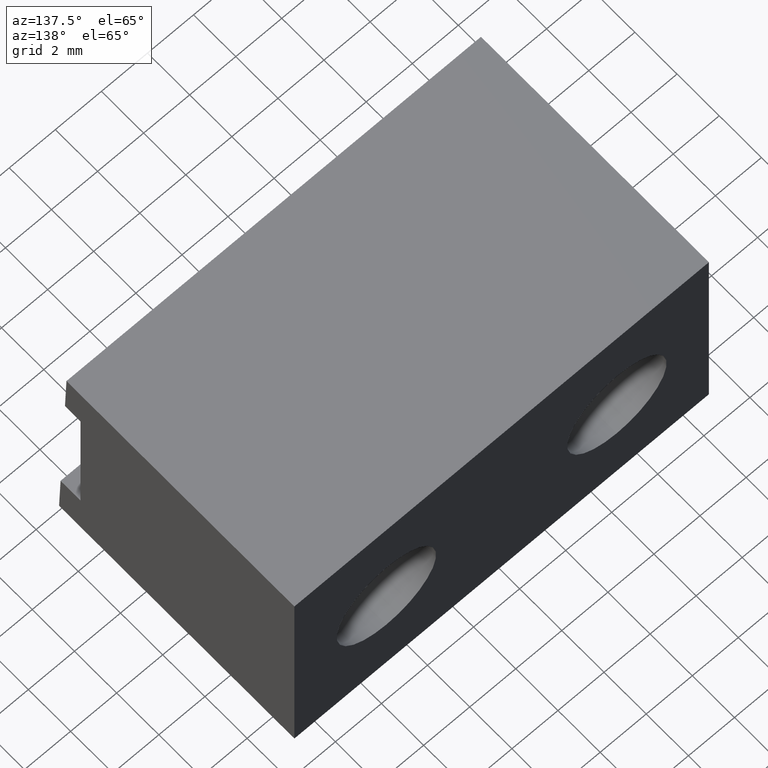
[diagram: clean part render]
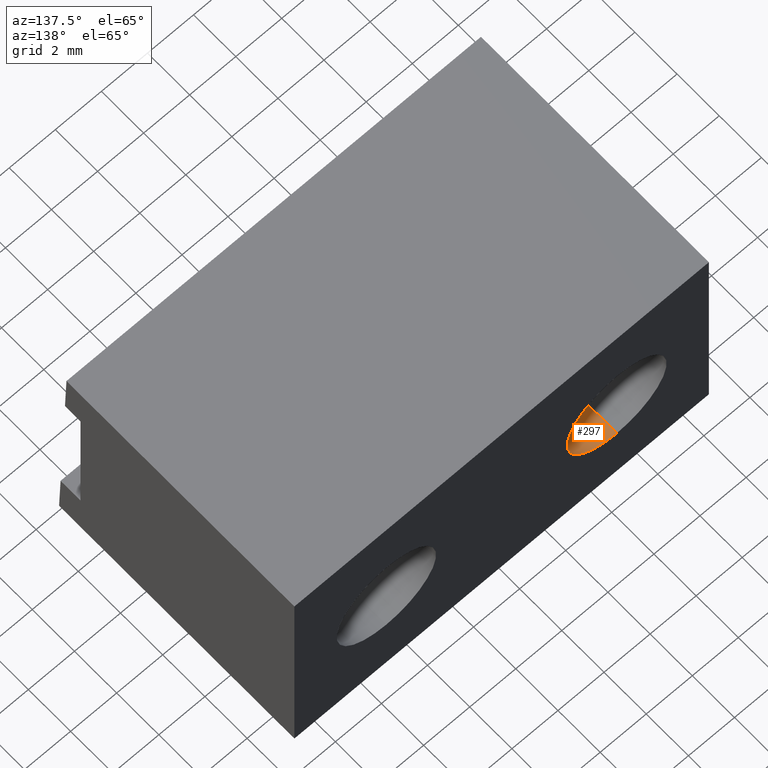
[diagram: same view with one face highlighted and labeled with its STEP entity id]
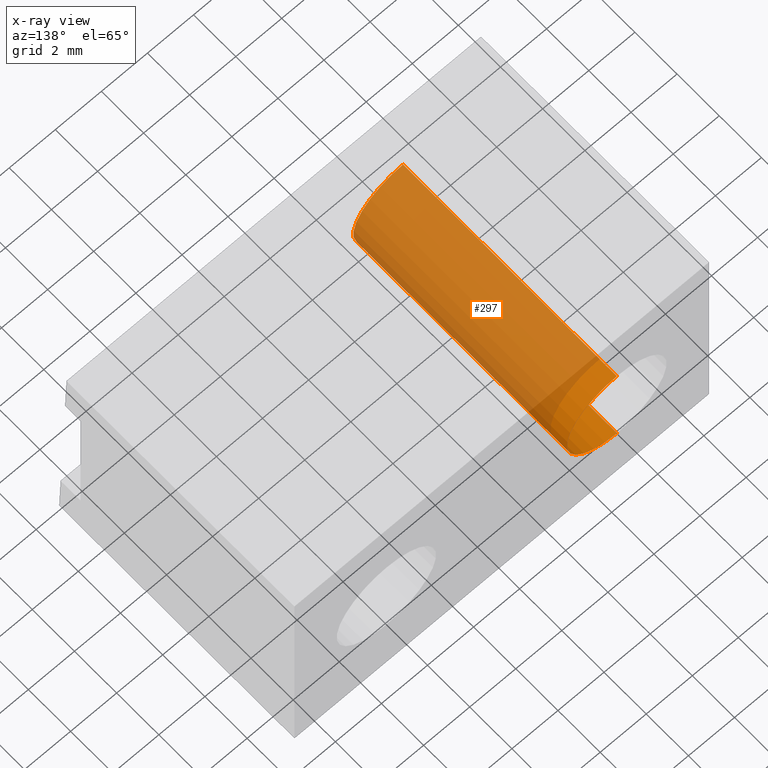
[diagram: x-ray of the same camera — body ghosted, the highlighted face saturated]
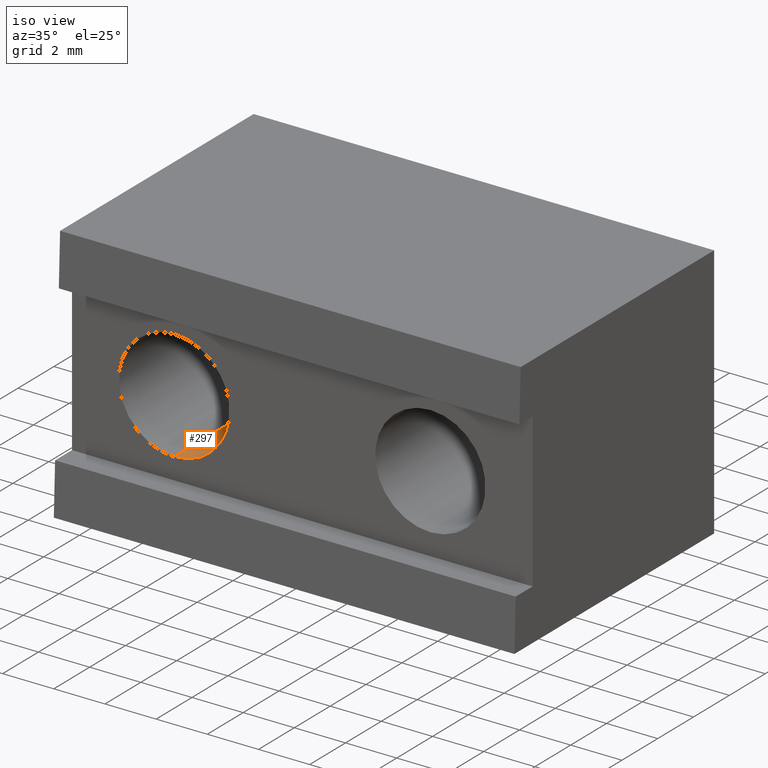
[diagram: same view with one face highlighted and labeled with its STEP entity id]
A machine part, auxiliary view. The second image highlights one B-rep face of the part: STEP entity #297.
The next image is the same camera in x-ray: the body ghosted, the highlighted face saturated — about 87% of this face is hidden behind the body in this view.
A second angle (iso view) of the same face is appended — the face is thin or edge-on in the first view.
In plain terms, the highlighted cylindrical surface (partial cylindrical patch) has radius 2.159 mm, axis along (-0, 1, -0).
Its self-contained STEP definition (entity closure, byte-faithful):
#62 = ORIENTED_EDGE ( 'NONE', *, *, #344, .F. ) ;
#76 = LINE ( 'NONE', #381, #84 ) ;
#84 = VECTOR ( 'NONE', #382, 39.37007874015748100 ) ;
#108 = ORIENTED_EDGE ( 'NONE', *, *, #177, .T. ) ;
#109 = EDGE_LOOP ( 'NONE', ( #62, #108, #127, #126 ) ) ;
#126 = ORIENTED_EDGE ( 'NONE', *, *, #189, .T. ) ;
#127 = ORIENTED_EDGE ( 'NONE', *, *, #164, .T. ) ;
#133 = AXIS2_PLACEMENT_3D ( 'NONE', #447, #449, #448 ) ;
#147 = AXIS2_PLACEMENT_3D ( 'NONE', #500, #514, #377 ) ;
#164 = EDGE_CURVE ( 'NONE', #334, #337, #76, .T. ) ;
#177 = EDGE_CURVE ( 'NONE', #333, #334, #274, .T. ) ;
#183 = AXIS2_PLACEMENT_3D ( 'NONE', #508, #509, #510 ) ;
#189 = EDGE_CURVE ( 'NONE', #337, #305, #241, .T. ) ;
#205 = FACE_OUTER_BOUND ( 'NONE', #109, .T. ) ;
#229 = LINE ( 'NONE', #400, #254 ) ;
#231 = CYLINDRICAL_SURFACE ( 'NONE', #133, 0.08499999999999997800 ) ;
#241 = CIRCLE ( 'NONE', #147, 0.08499999999999997800 ) ;
#254 = VECTOR ( 'NONE', #399, 39.37007874015748100 ) ;
#274 = CIRCLE ( 'NONE', #183, 0.08499999999999997800 ) ;
#297 = ADVANCED_FACE ( 'NONE', ( #205 ), #231, .F. ) ;
#305 = VERTEX_POINT ( 'NONE', #476 ) ;
#333 = VERTEX_POINT ( 'NONE', #418 ) ;
#334 = VERTEX_POINT ( 'NONE', #417 ) ;
#337 = VERTEX_POINT ( 'NONE', #415 ) ;
#344 = EDGE_CURVE ( 'NONE', #333, #305, #229, .T. ) ;
#377 = DIRECTION ( 'NONE',  ( 0.0000000000000000000, 0.0000000000000000000, -1.000000000000000000 ) ) ;
#381 = CARTESIAN_POINT ( 'NONE',  ( -0.1970000000000000400, -0.5609999999999999400, -0.1118503950000000100 ) ) ;
#382 = DIRECTION ( 'NONE',  ( -0.0000000000000000000, 1.000000000000000000, -0.0000000000000000000 ) ) ;
#399 = DIRECTION ( 'NONE',  ( -0.0000000000000000000, 1.000000000000000000, -0.0000000000000000000 ) ) ;
#400 = CARTESIAN_POINT ( 'NONE',  ( -0.1970000000000000400, -0.5609999999999999400, -0.2818503949999999800 ) ) ;
#415 = CARTESIAN_POINT ( 'NONE',  ( -0.1970000000000000400, 0.4390000000000000000, -0.1118503950000000100 ) ) ;
#417 = CARTESIAN_POINT ( 'NONE',  ( -0.1970000000000000400, 0.03999999999999998000, -0.1118503950000000100 ) ) ;
#418 = CARTESIAN_POINT ( 'NONE',  ( -0.1970000000000000400, 0.03999999999999998000, -0.2818503949999999800 ) ) ;
#447 = CARTESIAN_POINT ( 'NONE',  ( -0.1970000000000000400, -0.5609999999999999400, -0.1968503949999999800 ) ) ;
#448 = DIRECTION ( 'NONE',  ( 0.0000000000000000000, 0.0000000000000000000, 1.000000000000000000 ) ) ;
#449 = DIRECTION ( 'NONE',  ( -0.0000000000000000000, 1.000000000000000000, -0.0000000000000000000 ) ) ;
#476 = CARTESIAN_POINT ( 'NONE',  ( -0.1970000000000000400, 0.4390000000000000000, -0.2818503949999999800 ) ) ;
#500 = CARTESIAN_POINT ( 'NONE',  ( -0.1970000000000000400, 0.4390000000000000000, -0.1968503949999999800 ) ) ;
#508 = CARTESIAN_POINT ( 'NONE',  ( -0.1970000000000000400, 0.03999999999999998000, -0.1968503949999999800 ) ) ;
#509 = DIRECTION ( 'NONE',  ( -0.0000000000000000000, -1.000000000000000000, -0.0000000000000000000 ) ) ;
#510 = DIRECTION ( 'NONE',  ( 0.0000000000000000000, 0.0000000000000000000, 1.000000000000000000 ) ) ;
#514 = DIRECTION ( 'NONE',  ( -0.0000000000000000000, 1.000000000000000000, 0.0000000000000000000 ) ) ;